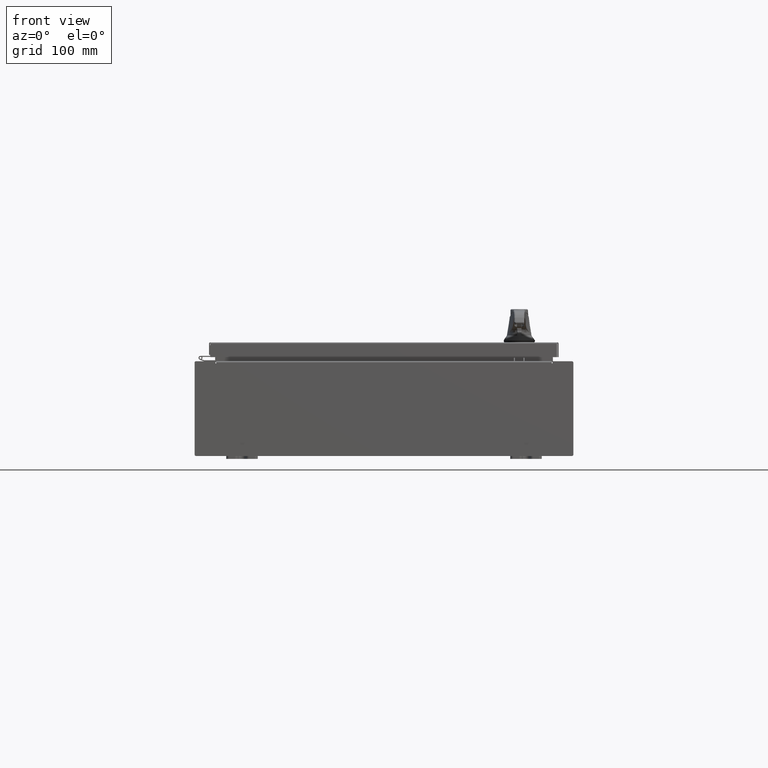
[diagram: clean part render]
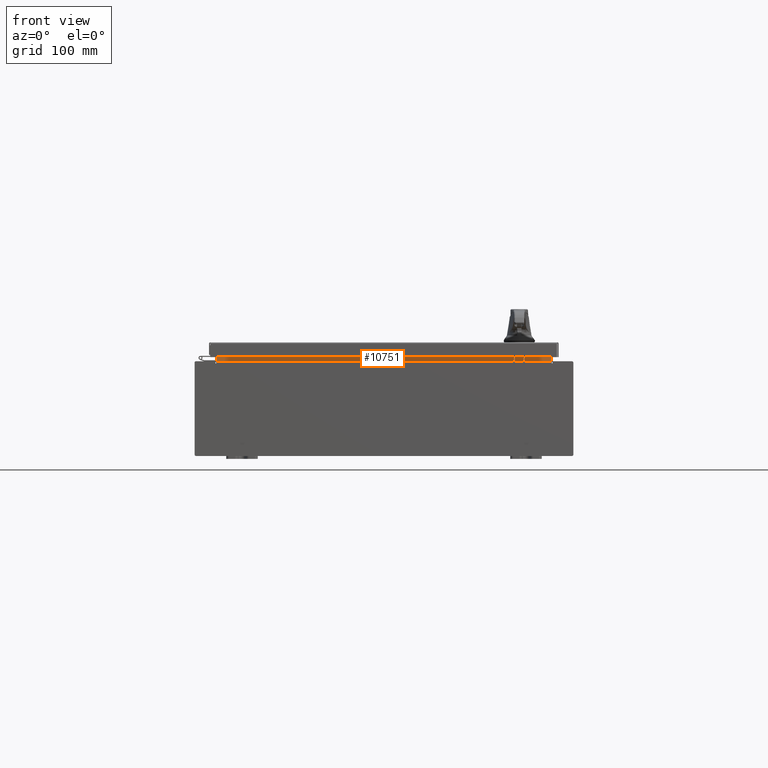
[diagram: same view with one face highlighted and labeled with its STEP entity id]
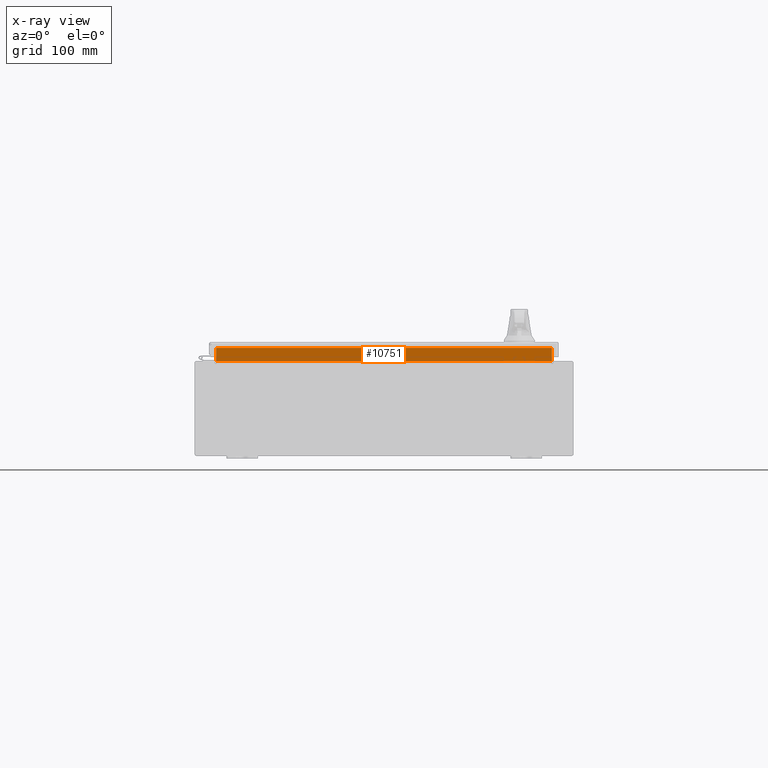
[diagram: x-ray of the same camera — body ghosted, the highlighted face saturated]
A machine part, front view. The second image highlights one B-rep face of the part: STEP entity #10751.
The next image is the same camera in x-ray: the body ghosted, the highlighted face saturated — about 0% of this face is hidden behind the body in this view.
In plain terms, the highlighted planar face has unit normal (0, -1, 0).
Its self-contained STEP definition (entity closure, byte-faithful):
#4054 = ORIENTED_EDGE ( 'NONE', *, *, #19305, .F. ) ;
#6089 = VERTEX_POINT ( 'NONE', #99614 ) ;
#6932 = CARTESIAN_POINT ( 'NONE',  ( -10.63720000000000400, -1.300299999999999800, 3.013000000000004800 ) ) ;
#10751 = ADVANCED_FACE ( 'NONE', ( #121674 ), #103374, .T. ) ;
#12214 = VERTEX_POINT ( 'NONE', #77057 ) ;
#15872 = CARTESIAN_POINT ( 'NONE',  ( 10.63720000000000400, -1.300299999999999800, 3.013000000000004800 ) ) ;
#19305 = EDGE_CURVE ( 'NONE', #12214, #6089, #34253, .T. ) ;
#22209 = VECTOR ( 'NONE', #51697, 39.37007874015748100 ) ;
#26531 = LINE ( 'NONE', #53748, #102438 ) ;
#27993 = AXIS2_PLACEMENT_3D ( 'NONE', #79337, #49254, #116686 ) ;
#33356 = VERTEX_POINT ( 'NONE', #6932 ) ;
#34253 = LINE ( 'NONE', #115414, #56532 ) ;
#49254 = DIRECTION ( 'NONE',  ( 0.0000000000000000000, 1.000000000000000000, 0.0000000000000000000 ) ) ;
#49399 = VECTOR ( 'NONE', #115483, 39.37007874015748100 ) ;
#50492 = VERTEX_POINT ( 'NONE', #15872 ) ;
#51697 = DIRECTION ( 'NONE',  ( -0.0000000000000000000, -0.0000000000000000000, 1.000000000000000000 ) ) ;
#53748 = CARTESIAN_POINT ( 'NONE',  ( -10.63720000000000200, -1.300299999999999800, 3.013000000000005200 ) ) ;
#56532 = VECTOR ( 'NONE', #87076, 39.37007874015748100 ) ;
#61113 = EDGE_CURVE ( 'NONE', #6089, #33356, #77654, .T. ) ;
#63297 = DIRECTION ( 'NONE',  ( 1.000000000000000000, 0.0000000000000000000, -5.136404305013091600E-017 ) ) ;
#66461 = ORIENTED_EDGE ( 'NONE', *, *, #101185, .F. ) ;
#67556 = CARTESIAN_POINT ( 'NONE',  ( -10.63720000000000200, -1.300299999999999800, 3.000000000000005300 ) ) ;
#69749 = LINE ( 'NONE', #99193, #22209 ) ;
#72978 = EDGE_CURVE ( 'NONE', #50492, #12214, #69749, .T. ) ;
#77057 = CARTESIAN_POINT ( 'NONE',  ( 10.63720000000000200, -1.300299999999999800, 3.837600000000005000 ) ) ;
#77654 = LINE ( 'NONE', #67556, #49399 ) ;
#79337 = CARTESIAN_POINT ( 'NONE',  ( 0.0000000000000000000, -1.300299999999999800, 0.0000000000000000000 ) ) ;
#87076 = DIRECTION ( 'NONE',  ( -1.000000000000000000, -0.0000000000000000000, -0.0000000000000000000 ) ) ;
#99193 = CARTESIAN_POINT ( 'NONE',  ( 10.63720000000000200, -1.300299999999999800, 3.925300000000005300 ) ) ;
#99301 = ORIENTED_EDGE ( 'NONE', *, *, #61113, .F. ) ;
#99614 = CARTESIAN_POINT ( 'NONE',  ( -10.63720000000000200, -1.300300000000000200, 3.837600000000005000 ) ) ;
#101185 = EDGE_CURVE ( 'NONE', #33356, #50492, #26531, .T. ) ;
#102438 = VECTOR ( 'NONE', #63297, 39.37007874015748100 ) ;
#103374 = PLANE ( 'NONE',  #27993 ) ;
#105195 = ORIENTED_EDGE ( 'NONE', *, *, #72978, .F. ) ;
#115414 = CARTESIAN_POINT ( 'NONE',  ( 10.63720000000000200, -1.300300000000000200, 3.837600000000005000 ) ) ;
#115483 = DIRECTION ( 'NONE',  ( -0.0000000000000000000, -0.0000000000000000000, -1.000000000000000000 ) ) ;
#116641 = EDGE_LOOP ( 'NONE', ( #99301, #4054, #105195, #66461 ) ) ;
#116686 = DIRECTION ( 'NONE',  ( 0.0000000000000000000, -0.0000000000000000000, 1.000000000000000000 ) ) ;
#121674 = FACE_OUTER_BOUND ( 'NONE', #116641, .T. ) ;